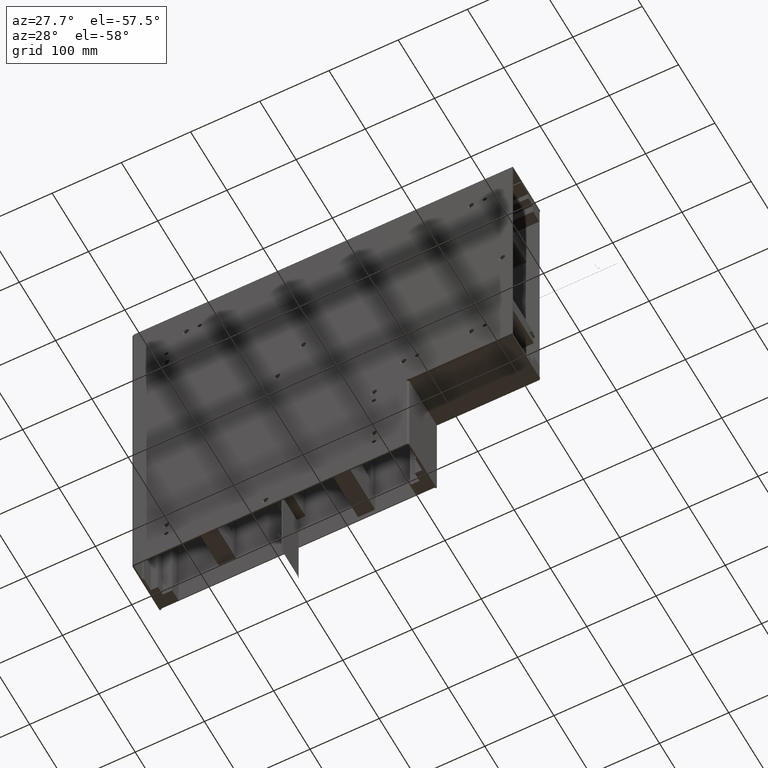
[diagram: clean part render]
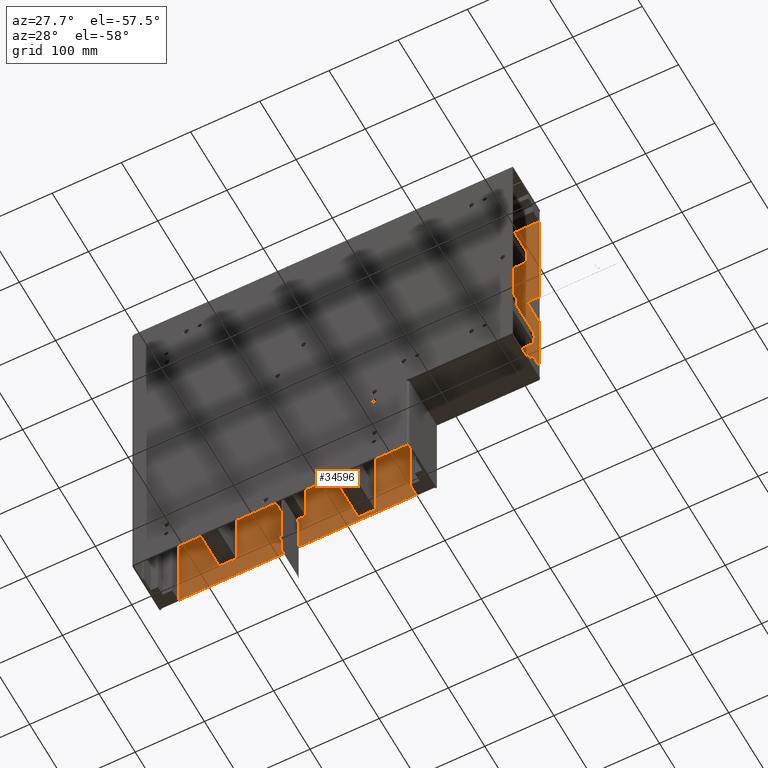
[diagram: same view with one face highlighted and labeled with its STEP entity id]
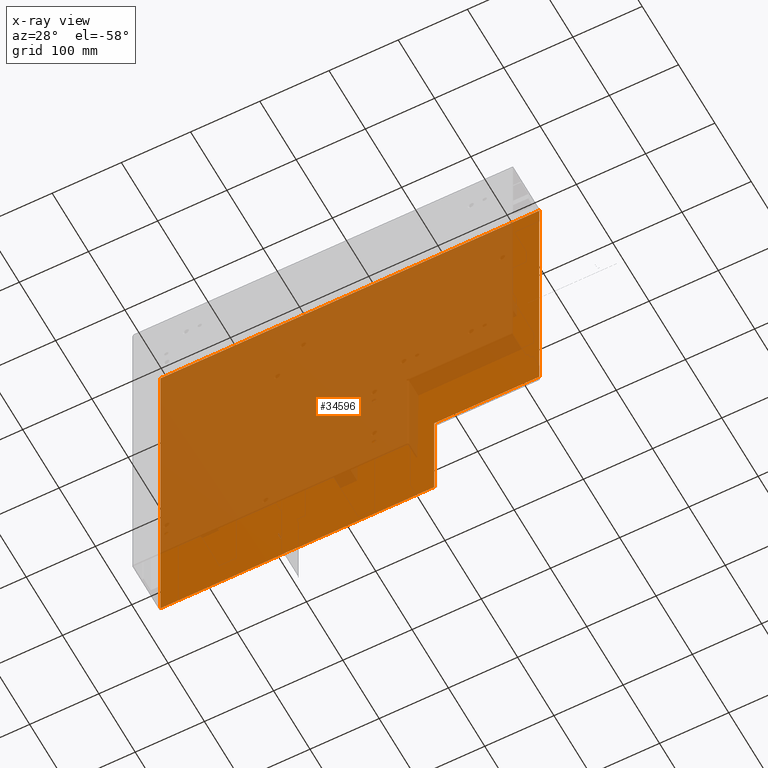
[diagram: x-ray of the same camera — body ghosted, the highlighted face saturated]
A machine part, auxiliary view. The second image highlights one B-rep face of the part: STEP entity #34596.
The next image is the same camera in x-ray: the body ghosted, the highlighted face saturated — about 73% of this face is hidden behind the body in this view.
In plain terms, the highlighted planar face has unit normal (0, 1, 0).
Its self-contained STEP definition (entity closure, byte-faithful):
#34427=DIRECTION('',(1.E0,0.E0,0.E0));
#34428=VECTOR('',#34427,5.473E2);
#34429=CARTESIAN_POINT('',(-3.495E2,-1.978E2,0.E0));
#34430=LINE('',#34429,#34428);
#34434=DIRECTION('',(0.E0,1.E0,0.E0));
#34435=VECTOR('',#34434,5.473E2);
#34436=CARTESIAN_POINT('',(1.978E2,-1.978E2,0.E0));
#34437=LINE('',#34436,#34435);
#34441=DIRECTION('',(-1.E0,0.E0,0.E0));
#34442=VECTOR('',#34441,3.956E2);
#34443=CARTESIAN_POINT('',(1.978E2,3.495E2,0.E0));
#34444=LINE('',#34443,#34442);
#34448=DIRECTION('',(0.E0,-1.E0,0.E0));
#34449=VECTOR('',#34448,1.517E2);
#34450=CARTESIAN_POINT('',(-1.978E2,3.495E2,0.E0));
#34451=LINE('',#34450,#34449);
#34455=DIRECTION('',(-1.E0,0.E0,0.E0));
#34456=VECTOR('',#34455,1.517E2);
#34457=CARTESIAN_POINT('',(-1.978E2,1.978E2,0.E0));
#34458=LINE('',#34457,#34456);
#34462=DIRECTION('',(0.E0,-1.E0,0.E0));
#34463=VECTOR('',#34462,3.956E2);
#34464=CARTESIAN_POINT('',(-3.495E2,1.978E2,0.E0));
#34465=LINE('',#34464,#34463);
#34553=CARTESIAN_POINT('',(-3.495E2,-1.978E2,0.E0));
#34554=CARTESIAN_POINT('',(1.978E2,-1.978E2,0.E0));
#34555=VERTEX_POINT('',#34553);
#34556=VERTEX_POINT('',#34554);
#34557=CARTESIAN_POINT('',(1.978E2,3.495E2,0.E0));
#34558=VERTEX_POINT('',#34557);
#34559=CARTESIAN_POINT('',(-1.978E2,3.495E2,0.E0));
#34560=VERTEX_POINT('',#34559);
#34561=CARTESIAN_POINT('',(-3.495E2,1.978E2,0.E0));
#34562=VERTEX_POINT('',#34561);
#34573=CARTESIAN_POINT('',(-1.978E2,1.978E2,0.E0));
#34574=VERTEX_POINT('',#34573);
#34577=CARTESIAN_POINT('',(0.E0,0.E0,0.E0));
#34578=DIRECTION('',(0.E0,0.E0,1.E0));
#34579=DIRECTION('',(1.E0,0.E0,0.E0));
#34580=AXIS2_PLACEMENT_3D('',#34577,#34578,#34579);
#34581=PLANE('',#34580);
#34583=ORIENTED_EDGE('',*,*,#34582,.T.);
#34585=ORIENTED_EDGE('',*,*,#34584,.T.);
#34587=ORIENTED_EDGE('',*,*,#34586,.T.);
#34589=ORIENTED_EDGE('',*,*,#34588,.T.);
#34591=ORIENTED_EDGE('',*,*,#34590,.T.);
#34593=ORIENTED_EDGE('',*,*,#34592,.T.);
#34594=EDGE_LOOP('',(#34583,#34585,#34587,#34589,#34591,#34593));
#34595=FACE_OUTER_BOUND('',#34594,.F.);
#34582=EDGE_CURVE('',#34555,#34556,#34430,.T.);
#34584=EDGE_CURVE('',#34556,#34558,#34437,.T.);
#34586=EDGE_CURVE('',#34558,#34560,#34444,.T.);
#34588=EDGE_CURVE('',#34560,#34574,#34451,.T.);
#34590=EDGE_CURVE('',#34574,#34562,#34458,.T.);
#34592=EDGE_CURVE('',#34562,#34555,#34465,.T.);
#34596=ADVANCED_FACE('',(#34595),#34581,.F.);